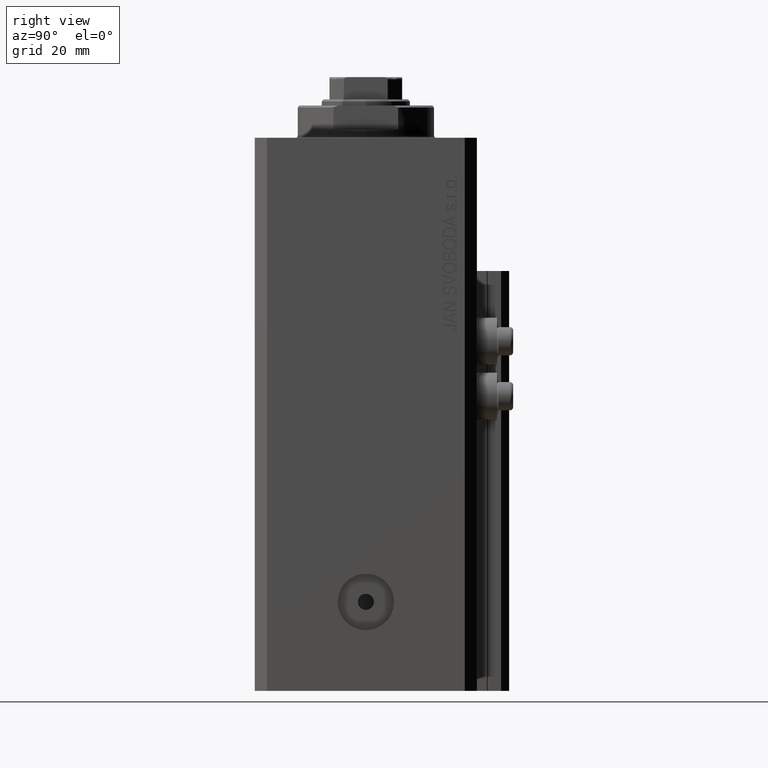
[diagram: clean part render]
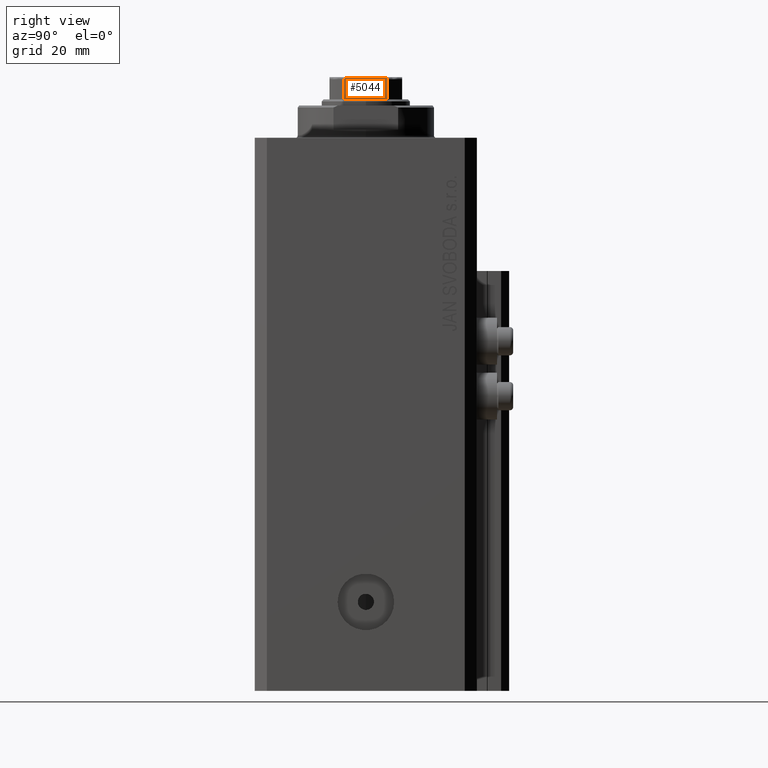
[diagram: same view with one face highlighted and labeled with its STEP entity id]
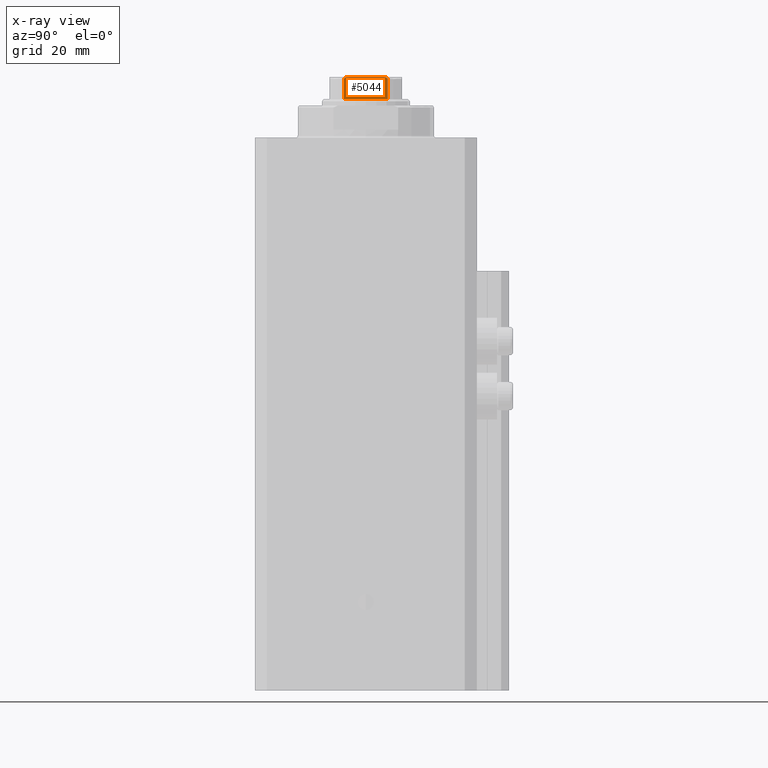
[diagram: x-ray of the same camera — body ghosted, the highlighted face saturated]
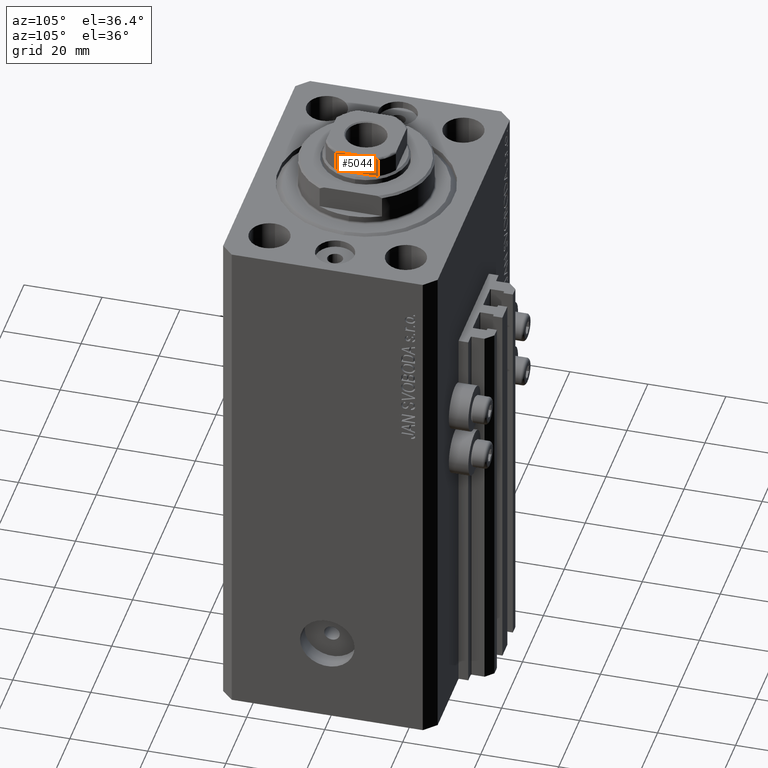
[diagram: same view with one face highlighted and labeled with its STEP entity id]
A machine part, right view. The second image highlights one B-rep face of the part: STEP entity #5044.
The next image is the same camera in x-ray: the body ghosted, the highlighted face saturated — about 0% of this face is hidden behind the body in this view.
A second angle (auxiliary view) of the same face is appended — the face is thin or edge-on in the first view.
In plain terms, the highlighted planar face has unit normal (-1, -0, 0).
Its self-contained STEP definition (entity closure, byte-faithful):
#440 = EDGE_CURVE ( 'NONE', #37499, #10465, #13468, .T. ) ;
#592 = LINE ( 'NONE', #33063, #9194 ) ;
#1824 = ORIENTED_EDGE ( 'NONE', *, *, #16732, .F. ) ;
#2058 = CARTESIAN_POINT ( 'NONE',  ( 9.000000000000001776, -4.358898943540675752, 142.0999999999999943 ) ) ;
#3558 = CARTESIAN_POINT ( 'NONE',  ( 9.000000000000001776, -5.297634495023405776, 141.8344228052780238 ) ) ;
#5044 = ADVANCED_FACE ( 'NONE', ( #8615 ), #26747, .F. ) ;
#5814 = EDGE_LOOP ( 'NONE', ( #7703, #26567, #1824, #19556, #23891, #34455 ) ) ;
#7469 = CARTESIAN_POINT ( 'NONE',  ( 8.999999999999998224, 5.390954572107325760, 141.7053628521399844 ) ) ;
#7702 = CARTESIAN_POINT ( 'NONE',  ( 9.000000000000000000, 5.077896145217237311, 141.9773016776067323 ) ) ;
#7703 = ORIENTED_EDGE ( 'NONE', *, *, #8521, .F. ) ;
#8050 = CARTESIAN_POINT ( 'NONE',  ( 9.000000000000000000, 8.999999999999998224, 136.5999999999999943 ) ) ;
#8521 = EDGE_CURVE ( 'NONE', #37499, #13909, #19464, .T. ) ;
#8615 = FACE_OUTER_BOUND ( 'NONE', #5814, .T. ) ;
#8720 = DIRECTION ( 'NONE',  ( -9.637352644315595243E-17, 1.000000000000000000, -0.000000000000000000 ) ) ;
#9194 = VECTOR ( 'NONE', #26353, 1000.000000000000000 ) ;
#10244 = CARTESIAN_POINT ( 'NONE',  ( 9.000000000000001776, -5.390945448132516304, 141.7054816538970385 ) ) ;
#10465 = VERTEX_POINT ( 'NONE', #16099 ) ;
#11050 = CARTESIAN_POINT ( 'NONE',  ( 9.000000000000000000, 5.174818616237114810, 141.9325218846533971 ) ) ;
#11078 = CARTESIAN_POINT ( 'NONE',  ( 9.000000000000000000, 5.408326913195986130, -0.001000000000001000089 ) ) ;
#11973 = CARTESIAN_POINT ( 'NONE',  ( 9.000000000000001776, 5.408326913195987906, 141.6535720727335104 ) ) ;
#13468 = B_SPLINE_CURVE_WITH_KNOTS ( 'NONE', 3,
 ( #32205, #46284, #32665, #14070, #13589, #3558, #14536, #10244, #28136, #21446 ),
 .UNSPECIFIED., .F., .F.,
 ( 4, 2, 2, 2, 4 ),
 ( 8.673617379884035472E-19, 0.0006221106941441024865, 0.0009331660412161544346, 0.001088693714752181439, 0.001244221388288208443 ),
 .UNSPECIFIED. ) ;
#13589 = CARTESIAN_POINT ( 'NONE',  ( 9.000000000000001776, -5.173732970196578407, 141.9331808643798922 ) ) ;
#13909 = VERTEX_POINT ( 'NONE', #17306 ) ;
#14070 = CARTESIAN_POINT ( 'NONE',  ( 9.000000000000000000, -5.074490744525476771, 141.9787200784332413 ) ) ;
#14536 = CARTESIAN_POINT ( 'NONE',  ( 9.000000000000001776, -5.335288102212744299, 141.7956905402762402 ) ) ;
#15841 = VERTEX_POINT ( 'NONE', #41680 ) ;
#16099 = CARTESIAN_POINT ( 'NONE',  ( 8.999999999999996447, -5.408326913195990571, 141.5999999999999943 ) ) ;
#16121 = CARTESIAN_POINT ( 'NONE',  ( 9.000000000000000000, 8.999999999999998224, 142.0999999999999943 ) ) ;
#16732 = EDGE_CURVE ( 'NONE', #23481, #10465, #592, .T. ) ;
#17306 = CARTESIAN_POINT ( 'NONE',  ( 9.000000000000000000, 4.358898943540675752, 142.0999999999999943 ) ) ;
#19464 = LINE ( 'NONE', #16121, #19616 ) ;
#19556 = ORIENTED_EDGE ( 'NONE', *, *, #21385, .T. ) ;
#19616 = VECTOR ( 'NONE', #8720, 1000.000000000000000 ) ;
#19834 = CARTESIAN_POINT ( 'NONE',  ( 9.000000000000000000, 8.999999999999998224, 142.0999999999999943 ) ) ;
#21385 = EDGE_CURVE ( 'NONE', #23481, #15841, #45502, .T. ) ;
#21446 = CARTESIAN_POINT ( 'NONE',  ( 8.999999999999996447, -5.408326913195990571, 141.5999999999999943 ) ) ;
#21608 = EDGE_CURVE ( 'NONE', #32309, #13909, #29934, .T. ) ;
#22009 = CARTESIAN_POINT ( 'NONE',  ( 9.000000000000001776, 4.569278586016984889, 142.1000000000000512 ) ) ;
#22468 = DIRECTION ( 'NONE',  ( 9.637352644315595243E-17, -1.000000000000000000, 0.000000000000000000 ) ) ;
#22594 = DIRECTION ( 'NONE',  ( -9.637352644315595243E-17, 1.000000000000000000, -0.000000000000000000 ) ) ;
#22941 = VECTOR ( 'NONE', #22594, 1000.000000000000000 ) ;
#23481 = VERTEX_POINT ( 'NONE', #29363 ) ;
#23891 = ORIENTED_EDGE ( 'NONE', *, *, #24332, .T. ) ;
#24332 = EDGE_CURVE ( 'NONE', #15841, #32309, #29216, .T. ) ;
#25136 = DIRECTION ( 'NONE',  ( -0.000000000000000000, -0.000000000000000000, 1.000000000000000000 ) ) ;
#25595 = CARTESIAN_POINT ( 'NONE',  ( 9.000000000000000000, 4.778533838065919248, 142.0778291476469803 ) ) ;
#26353 = DIRECTION ( 'NONE',  ( -0.000000000000000000, -0.000000000000000000, 1.000000000000000000 ) ) ;
#26511 = DIRECTION ( 'NONE',  ( -1.000000000000000000, -9.637352644315595243E-17, 0.000000000000000000 ) ) ;
#26567 = ORIENTED_EDGE ( 'NONE', *, *, #440, .T. ) ;
#26747 = PLANE ( 'NONE',  #30178 ) ;
#28136 = CARTESIAN_POINT ( 'NONE',  ( 9.000000000000001776, -5.408326913195986130, 141.6537434673188045 ) ) ;
#29216 = LINE ( 'NONE', #11078, #31441 ) ;
#29363 = CARTESIAN_POINT ( 'NONE',  ( 8.999999999999996447, -5.408326913195990571, 136.6000000000000796 ) ) ;
#29934 = B_SPLINE_CURVE_WITH_KNOTS ( 'NONE', 3,
 ( #44671, #11973, #7469, #43746, #43976, #11050, #7702, #25595, #22009, #36574 ),
 .UNSPECIFIED., .F., .F.,
 ( 4, 2, 2, 2, 4 ),
 ( 0.000000000000000000, 0.0001582447020887964273, 0.0003164894041775928547, 0.0006329788083552356911, 0.001265957616710524291 ),
 .UNSPECIFIED. ) ;
#30178 = AXIS2_PLACEMENT_3D ( 'NONE', #19834, #26511, #22468 ) ;
#31441 = VECTOR ( 'NONE', #25136, 1000.000000000000000 ) ;
#32205 = CARTESIAN_POINT ( 'NONE',  ( 9.000000000000001776, -4.358898943540675752, 142.0999999999999943 ) ) ;
#32309 = VERTEX_POINT ( 'NONE', #46565 ) ;
#32665 = CARTESIAN_POINT ( 'NONE',  ( 9.000000000000003553, -4.775913644518299250, 142.0781460743083926 ) ) ;
#33063 = CARTESIAN_POINT ( 'NONE',  ( 8.999999999999996447, -5.408326913195990571, -0.001000000000001000089 ) ) ;
#34455 = ORIENTED_EDGE ( 'NONE', *, *, #21608, .T. ) ;
#36574 = CARTESIAN_POINT ( 'NONE',  ( 9.000000000000000000, 4.358898943540675752, 142.0999999999999943 ) ) ;
#37499 = VERTEX_POINT ( 'NONE', #2058 ) ;
#41680 = CARTESIAN_POINT ( 'NONE',  ( 9.000000000000000000, 5.408326913195986130, 136.6000000000000796 ) ) ;
#43746 = CARTESIAN_POINT ( 'NONE',  ( 9.000000000000000000, 5.335664150027731090, 141.7951843380012917 ) ) ;
#43976 = CARTESIAN_POINT ( 'NONE',  ( 9.000000000000000000, 5.298186678102083214, 141.8338781215005326 ) ) ;
#44671 = CARTESIAN_POINT ( 'NONE',  ( 9.000000000000000000, 5.408326913195986130, 141.5999999999999943 ) ) ;
#45502 = LINE ( 'NONE', #8050, #22941 ) ;
#46284 = CARTESIAN_POINT ( 'NONE',  ( 9.000000000000001776, -4.569272810556664233, 142.1000000000000227 ) ) ;
#46565 = CARTESIAN_POINT ( 'NONE',  ( 9.000000000000000000, 5.408326913195986130, 141.5999999999999943 ) ) ;